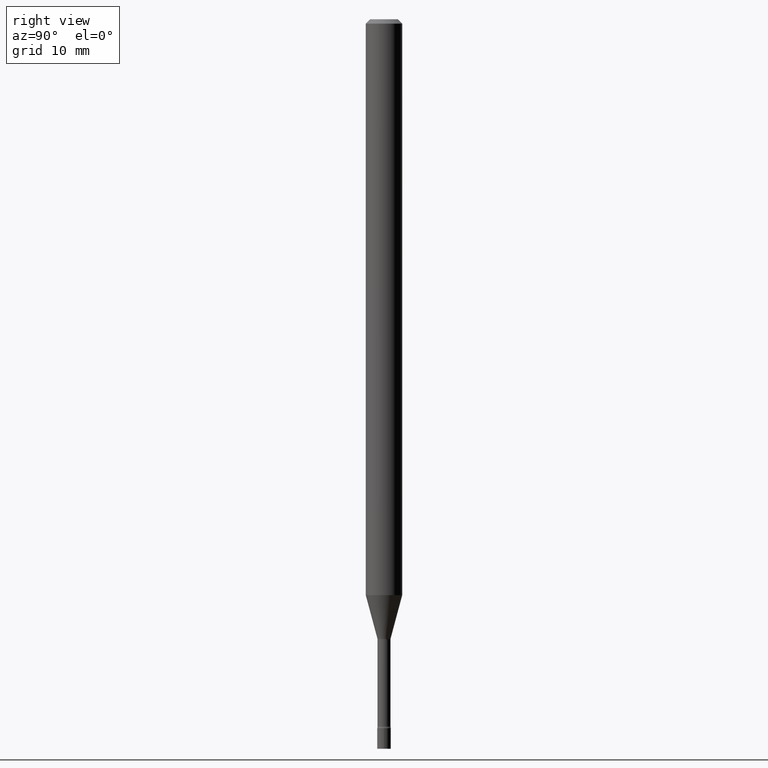
[diagram: clean part render]
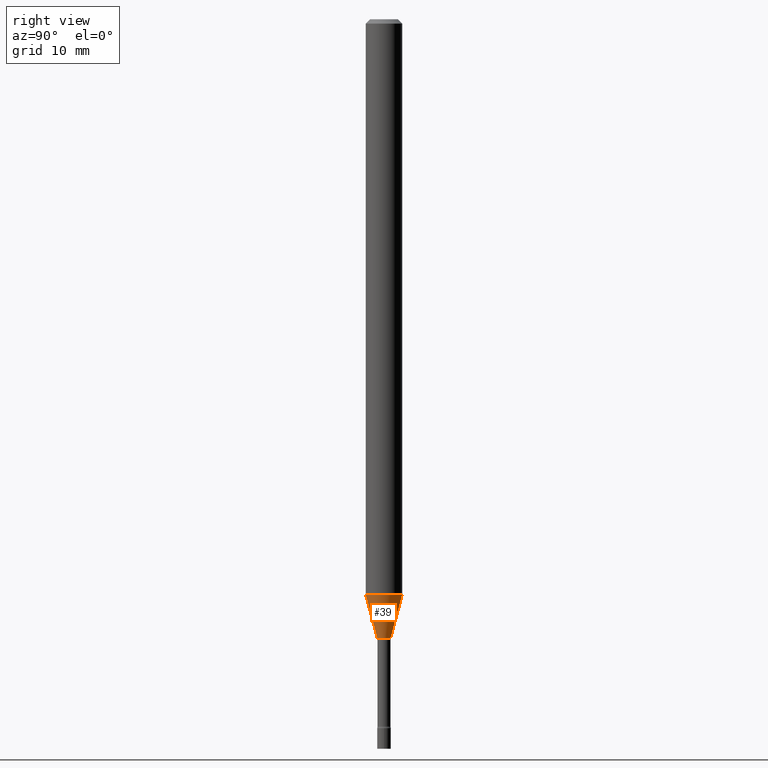
[diagram: same view with one face highlighted and labeled with its STEP entity id]
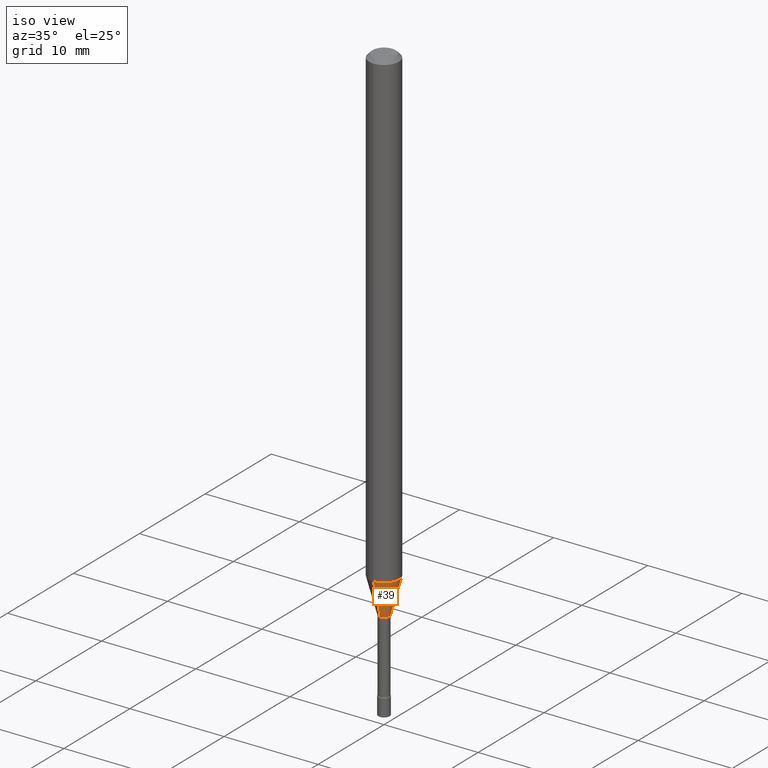
[diagram: same view with one face highlighted and labeled with its STEP entity id]
A machine part, right view. The second image highlights one B-rep face of the part: STEP entity #39.
A second angle (iso view) of the same face is appended — the face is thin or edge-on in the first view.
In plain terms, the highlighted conical surface has half-angle 15 deg.
Its self-contained STEP definition (entity closure, byte-faithful):
#35 = VERTEX_POINT ( 'NONE', #340 ) ;
#39 = ADVANCED_FACE ( 'NONE', ( #308 ), #271, .T. ) ;
#46 = CARTESIAN_POINT ( 'NONE',  ( -4.364351673553434996E-16, -0.06250000000000691114, -1.973225147374217503 ) ) ;
#59 = VERTEX_POINT ( 'NONE', #46 ) ;
#65 = DIRECTION ( 'NONE',  ( -6.982962677686265922E-15, -1.000000000000000000, 0.000000000000000000 ) ) ;
#83 = DIRECTION ( 'NONE',  ( -2.445459864664737566E-29, 3.491494143609276784E-15, 1.000000000000000000 ) ) ;
#96 = EDGE_CURVE ( 'NONE', #347, #35, #426, .T. ) ;
#100 = DIRECTION ( 'NONE',  ( 1.839019923739599526E-15, 0.2588190451025248473, 0.9659258262890673130 ) ) ;
#168 = CARTESIAN_POINT ( 'NONE',  ( -1.578925554262611837E-16, -0.02261111260567139764, -2.122092501787273378 ) ) ;
#169 = EDGE_CURVE ( 'NONE', #35, #260, #464, .T. ) ;
#174 = CARTESIAN_POINT ( 'NONE',  ( -1.578925554262611837E-16, -0.02261111260567139764, -2.122092501787273378 ) ) ;
#190 = CARTESIAN_POINT ( 'NONE',  ( 4.440892098501106381E-16, 0.06249999999999308192, -1.973225147374218169 ) ) ;
#217 = CIRCLE ( 'NONE', #415, 0.06250000000000000000 ) ;
#232 = EDGE_CURVE ( 'NONE', #59, #260, #217, .T. ) ;
#251 = CARTESIAN_POINT ( 'NONE',  ( 4.825442901850811543E-29, -6.889504046079633942E-15, -1.973225147374217947 ) ) ;
#260 = VERTEX_POINT ( 'NONE', #190 ) ;
#268 = CARTESIAN_POINT ( 'NONE',  ( 5.189492042226759064E-29, -7.409273542187424464E-15, -2.122092501787273378 ) ) ;
#271 = CONICAL_SURFACE ( 'NONE', #329, 0.02261111260566398690, 0.2617993877991501295 ) ;
#275 = CARTESIAN_POINT ( 'NONE',  ( 1.606616180941336340E-16, 0.02261111260565657616, -2.122092501787273378 ) ) ;
#285 = DIRECTION ( 'NONE',  ( -6.982962677686265922E-15, -1.000000000000000000, 4.370956789862821150E-15 ) ) ;
#308 = FACE_OUTER_BOUND ( 'NONE', #418, .T. ) ;
#318 = EDGE_CURVE ( 'NONE', #347, #59, #512, .T. ) ;
#329 = AXIS2_PLACEMENT_3D ( 'NONE', #268, #471, #424 ) ;
#335 = ORIENTED_EDGE ( 'NONE', *, *, #96, .T. ) ;
#340 = CARTESIAN_POINT ( 'NONE',  ( 3.023754139721223086E-16, 0.02261111260565657616, -2.122092501787273378 ) ) ;
#344 = ORIENTED_EDGE ( 'NONE', *, *, #169, .T. ) ;
#347 = VERTEX_POINT ( 'NONE', #168 ) ;
#364 = DIRECTION ( 'NONE',  ( -1.807323732225328562E-15, -0.2588190451025179639, 0.9659258262890689783 ) ) ;
#370 = VECTOR ( 'NONE', #364, 39.37007874015749564 ) ;
#398 = VECTOR ( 'NONE', #100, 39.37007874015747433 ) ;
#415 = AXIS2_PLACEMENT_3D ( 'NONE', #251, #83, #285 ) ;
#418 = EDGE_LOOP ( 'NONE', ( #335, #344, #455, #490 ) ) ;
#424 = DIRECTION ( 'NONE',  ( -6.982962677686265922E-15, -1.000000000000000000, 0.000000000000000000 ) ) ;
#426 = CIRCLE ( 'NONE', #513, 0.02261111260566398690 ) ;
#455 = ORIENTED_EDGE ( 'NONE', *, *, #232, .F. ) ;
#457 = DIRECTION ( 'NONE',  ( -2.445459864664737566E-29, 3.491494143609276784E-15, 1.000000000000000000 ) ) ;
#464 = LINE ( 'NONE', #275, #398 ) ;
#471 = DIRECTION ( 'NONE',  ( -2.445459864664737566E-29, 3.491494143609276784E-15, 1.000000000000000000 ) ) ;
#490 = ORIENTED_EDGE ( 'NONE', *, *, #318, .F. ) ;
#509 = CARTESIAN_POINT ( 'NONE',  ( 5.189492042226759064E-29, -7.409273542187424464E-15, -2.122092501787273378 ) ) ;
#512 = LINE ( 'NONE', #174, #370 ) ;
#513 = AXIS2_PLACEMENT_3D ( 'NONE', #509, #457, #65 ) ;